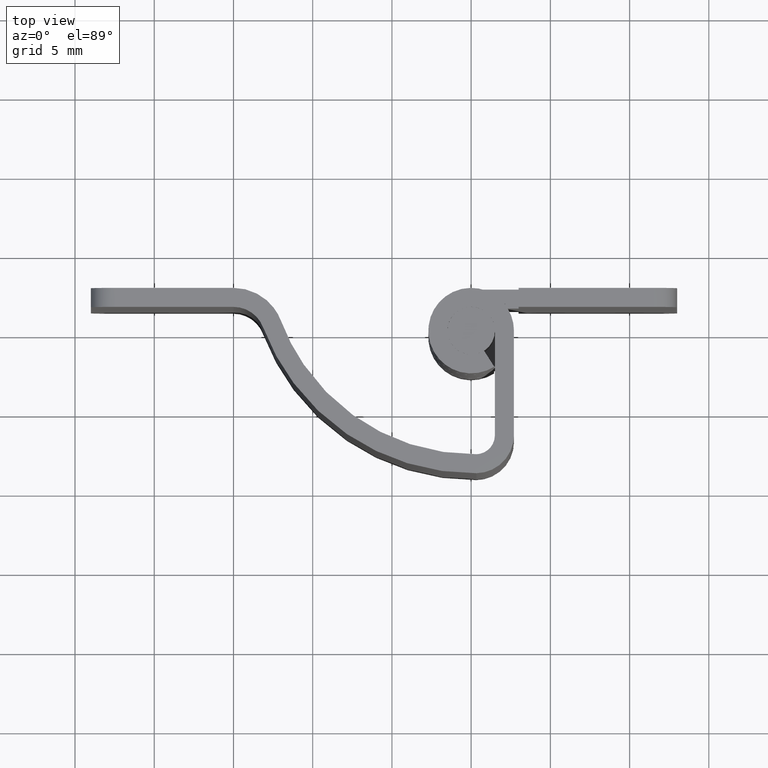
[diagram: clean part render]
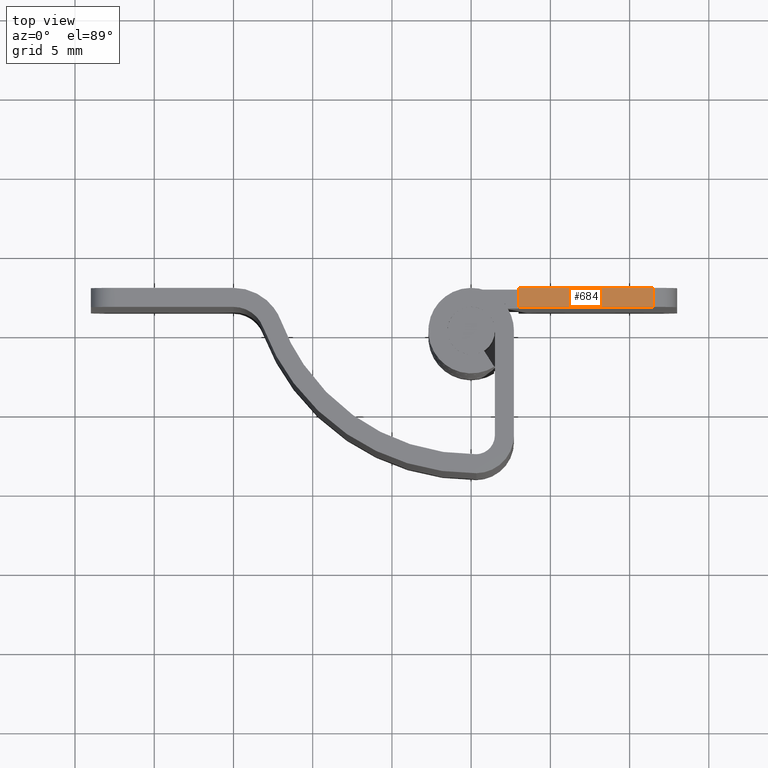
[diagram: same view with one face highlighted and labeled with its STEP entity id]
A machine part, top view. The second image highlights one B-rep face of the part: STEP entity #684.
In plain terms, the highlighted face is a freeform B-spline surface patch.
Its self-contained STEP definition (entity closure, byte-faithful):
#375=CARTESIAN_POINT('',(3.0,1.500000000000000,25.000006999999950));
#376=VERTEX_POINT('',#375);
#382=CARTESIAN_POINT('',(3.0,2.700001000000000,25.000006999999901));
#383=VERTEX_POINT('',#382);
#384=CARTESIAN_POINT('',(3.0,2.700001000000000,25.000006999999901));
#385=CARTESIAN_POINT('',(3.0,1.500000000000000,25.000006999999950));
#386=QUASI_UNIFORM_CURVE('',1,(#384,#385),.UNSPECIFIED.,.F.,.U.);
#387=EDGE_CURVE('',#383,#376,#386,.T.);
#519=CARTESIAN_POINT('',(11.500000000000000,1.500000000000000,25.000006999999950));
#520=VERTEX_POINT('',#519);
#541=CARTESIAN_POINT('',(11.500000000000000,2.700001000000000,25.000006999999950));
#542=VERTEX_POINT('',#541);
#556=CARTESIAN_POINT('',(11.500000000000000,1.500000000000000,25.000006999999950));
#557=CARTESIAN_POINT('',(11.500000000000000,2.700001000000000,25.000006999999950));
#558=QUASI_UNIFORM_CURVE('',1,(#556,#557),.UNSPECIFIED.,.F.,.U.);
#559=EDGE_CURVE('',#520,#542,#558,.T.);
#665=CARTESIAN_POINT('',(2.575425016474649,1.440059952375835,25.000006999999901));
#666=CARTESIAN_POINT('',(11.924575211513121,1.440059952375835,25.000006999999901));
#667=CARTESIAN_POINT('',(2.575425016474649,2.759941079810700,25.000006999999901));
#668=CARTESIAN_POINT('',(11.924575211513121,2.759941079810700,25.000006999999901));
#669=B_SPLINE_SURFACE_WITH_KNOTS('',1,1,((#665,#667),(#666,#668)),.UNSPECIFIED.,.F.,.F.,.U.,(2,2),(2,2),(0.0,9.349150195038469),(0.041708334948495,0.958291687403247),.UNSPECIFIED.);
#670=ORIENTED_EDGE('',*,*,#387,.T.);
#671=CARTESIAN_POINT('',(3.0,1.500000000000000,25.000006999999950));
#672=CARTESIAN_POINT('',(11.500000000000000,1.500000000000000,25.000006999999950));
#673=QUASI_UNIFORM_CURVE('',1,(#671,#672),.UNSPECIFIED.,.F.,.U.);
#674=EDGE_CURVE('',#376,#520,#673,.T.);
#675=ORIENTED_EDGE('',*,*,#674,.T.);
#676=ORIENTED_EDGE('',*,*,#559,.T.);
#677=CARTESIAN_POINT('',(11.500000000000000,2.700001000000000,25.000006999999950));
#678=CARTESIAN_POINT('',(3.0,2.700001000000000,25.000006999999901));
#679=QUASI_UNIFORM_CURVE('',1,(#677,#678),.UNSPECIFIED.,.F.,.U.);
#680=EDGE_CURVE('',#542,#383,#679,.T.);
#681=ORIENTED_EDGE('',*,*,#680,.T.);
#682=EDGE_LOOP('',(#670,#675,#676,#681));
#683=FACE_OUTER_BOUND('',#682,.T.);
#684=ADVANCED_FACE('',(#683),#669,.T.);